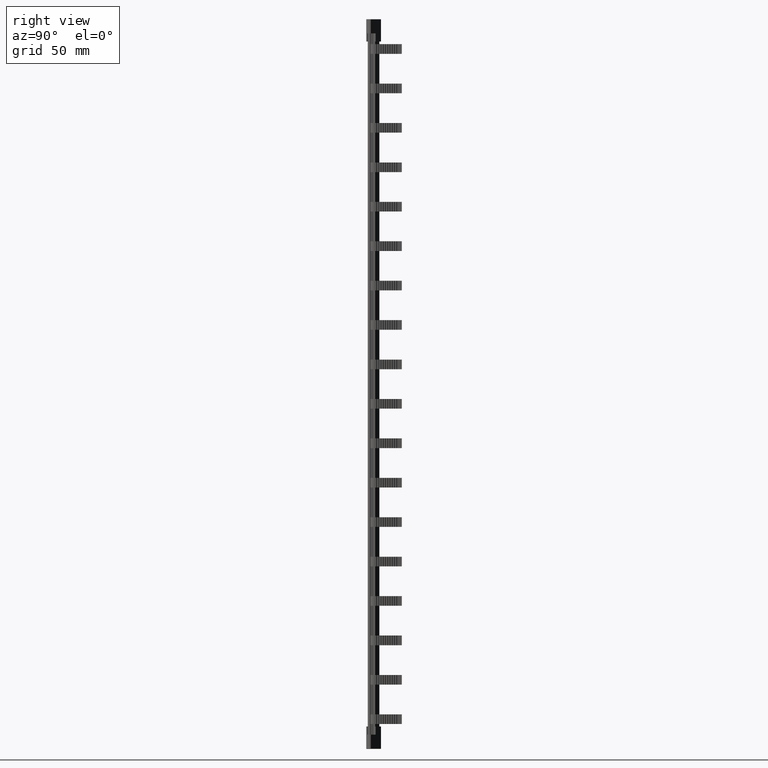
[diagram: clean part render]
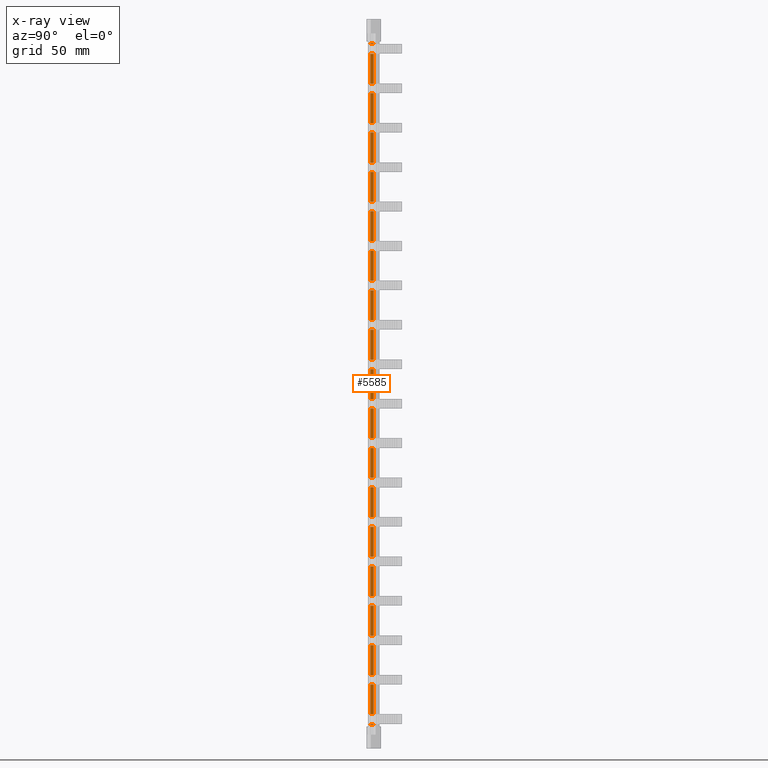
[diagram: x-ray — body ghosted, one internal face saturated and labeled with its STEP entity id]
A machine part, right view, then the same camera in x-ray: the body is ghosted and one INTERNAL B-rep face — a face not visible from any outside direction — is saturated and labeled: STEP entity #5585.
In plain terms, the highlighted planar face has unit normal (1, -0, 0).
Its self-contained STEP definition (entity closure, byte-faithful):
#1135 = PLANE ( 'NONE',  #29144 ) ;
#1137 = FACE_OUTER_BOUND ( 'NONE', #15935, .T. ) ;
#1138 = DIRECTION ( 'NONE',  ( 1.000000000000000000, -7.527729695361790300E-054, 1.654357377733165500E-024 ) ) ;
#1144 = DIRECTION ( 'NONE',  ( 1.654357377733165500E-024, 0.0000000000000000000, -1.000000000000000000 ) ) ;
#1179 = CARTESIAN_POINT ( 'NONE',  ( 10.37430495582721900, -198.1399000273587800, 209.0000000000000300 ) ) ;
#5353 = CARTESIAN_POINT ( 'NONE',  ( 10.37430495582721900, -198.1399000273587800, 134.0000000000000000 ) ) ;
#5354 = DIRECTION ( 'NONE',  ( -4.290194349704565900E-047, -1.000000000000000000, 2.593268936129210100E-023 ) ) ;
#5363 = CARTESIAN_POINT ( 'NONE',  ( 10.37430495582721900, -198.1399000273587800, 50.30000000000001100 ) ) ;
#5369 = DIRECTION ( 'NONE',  ( -4.290194349704565900E-047, -1.000000000000000000, 2.593268936129210100E-023 ) ) ;
#5585 = ADVANCED_FACE ( 'NONE', ( #1137 ), #1135, .T. ) ;
#6374 = VECTOR ( 'NONE', #19510, 1000.000000000000000 ) ;
#6408 = VECTOR ( 'NONE', #19505, 1000.000000000000000 ) ;
#6420 = VECTOR ( 'NONE', #19557, 1000.000000000000000 ) ;
#6422 = VECTOR ( 'NONE', #15770, 1000.000000000000000 ) ;
#6441 = VECTOR ( 'NONE', #15763, 1000.000000000000000 ) ;
#6444 = VECTOR ( 'NONE', #15780, 1000.000000000000000 ) ;
#6445 = VECTOR ( 'NONE', #19551, 1000.000000000000000 ) ;
#6446 = VECTOR ( 'NONE', #15775, 1000.000000000000000 ) ;
#6451 = VECTOR ( 'NONE', #14779, 1000.000000000000000 ) ;
#6457 = VECTOR ( 'NONE', #19520, 1000.000000000000000 ) ;
#6464 = VECTOR ( 'NONE', #19531, 1000.000000000000000 ) ;
#6467 = VECTOR ( 'NONE', #19582, 1000.000000000000000 ) ;
#6471 = VECTOR ( 'NONE', #14802, 1000.000000000000000 ) ;
#7313 = VECTOR ( 'NONE', #18851, 1000.000000000000000 ) ;
#7317 = VECTOR ( 'NONE', #18726, 1000.000000000000000 ) ;
#7336 = VECTOR ( 'NONE', #18704, 1000.000000000000000 ) ;
#7345 = VECTOR ( 'NONE', #18754, 1000.000000000000000 ) ;
#7346 = VECTOR ( 'NONE', #18805, 1000.000000000000000 ) ;
#7353 = VECTOR ( 'NONE', #18735, 1000.000000000000000 ) ;
#7355 = VECTOR ( 'NONE', #18751, 1000.000000000000000 ) ;
#7364 = VECTOR ( 'NONE', #18793, 1000.000000000000000 ) ;
#7367 = VECTOR ( 'NONE', #18841, 1000.000000000000000 ) ;
#7369 = VECTOR ( 'NONE', #18749, 1000.000000000000000 ) ;
#7374 = VECTOR ( 'NONE', #18764, 1000.000000000000000 ) ;
#7383 = VECTOR ( 'NONE', #18864, 1000.000000000000000 ) ;
#7385 = VECTOR ( 'NONE', #19057, 1000.000000000000000 ) ;
#7386 = VECTOR ( 'NONE', #19044, 1000.000000000000000 ) ;
#7394 = VECTOR ( 'NONE', #19019, 1000.000000000000000 ) ;
#7395 = VECTOR ( 'NONE', #19010, 1000.000000000000000 ) ;
#7402 = VECTOR ( 'NONE', #19018, 1000.000000000000000 ) ;
#7403 = VECTOR ( 'NONE', #18982, 1000.000000000000000 ) ;
#7404 = VECTOR ( 'NONE', #18987, 1000.000000000000000 ) ;
#7406 = VECTOR ( 'NONE', #18834, 1000.000000000000000 ) ;
#7408 = VECTOR ( 'NONE', #19052, 1000.000000000000000 ) ;
#7412 = VECTOR ( 'NONE', #19083, 1000.000000000000000 ) ;
#7425 = VECTOR ( 'NONE', #18849, 1000.000000000000000 ) ;
#7428 = VECTOR ( 'NONE', #18867, 1000.000000000000000 ) ;
#7432 = VECTOR ( 'NONE', #18947, 1000.000000000000000 ) ;
#7433 = VECTOR ( 'NONE', #19001, 1000.000000000000000 ) ;
#7434 = VECTOR ( 'NONE', #18977, 1000.000000000000000 ) ;
#7436 = VECTOR ( 'NONE', #18993, 1000.000000000000000 ) ;
#7438 = VECTOR ( 'NONE', #19040, 1000.000000000000000 ) ;
#7439 = VECTOR ( 'NONE', #19015, 1000.000000000000000 ) ;
#7440 = VECTOR ( 'NONE', #18869, 1000.000000000000000 ) ;
#7449 = VECTOR ( 'NONE', #19081, 1000.000000000000000 ) ;
#7640 = LINE ( 'NONE', #5353, #24638 ) ;
#7749 = CARTESIAN_POINT ( 'NONE',  ( 10.37430495582775900, 1.100000111734499500, 219.0000000000000000 ) ) ;
#7750 = CARTESIAN_POINT ( 'NONE',  ( 10.37430495582721900, 2.600000585347644700, 207.9000000000000100 ) ) ;
#7753 = DIRECTION ( 'NONE',  ( -0.0000000000000000000, 2.593268936129210100E-023, 1.000000000000000000 ) ) ;
#7754 = LINE ( 'NONE', #7749, #25068 ) ;
#7760 = LINE ( 'NONE', #7750, #25069 ) ;
#7762 = DIRECTION ( 'NONE',  ( -0.0000000000000000000, -0.0000000000000000000, -1.000000000000000000 ) ) ;
#7764 = LINE ( 'NONE', #7807, #25093 ) ;
#7807 = CARTESIAN_POINT ( 'NONE',  ( 10.37430495582775900, 1.100000111734499500, 219.0000000000000000 ) ) ;
#7810 = DIRECTION ( 'NONE',  ( -0.0000000000000000000, -0.0000000000000000000, -1.000000000000000000 ) ) ;
#8268 = CARTESIAN_POINT ( 'NONE',  ( 10.37430495582723300, 1.100000356056294300, 209.0000000000000000 ) ) ;
#8270 = CARTESIAN_POINT ( 'NONE',  ( 10.37430495582775900, 1.100000111734499500, -90.50000000000000000 ) ) ;
#8279 = CARTESIAN_POINT ( 'NONE',  ( 10.37430495582775900, 1.100000111734499500, 10.80000000000000400 ) ) ;
#8295 = CARTESIAN_POINT ( 'NONE',  ( 10.37430495582775900, 1.100000111734499500, 28.40000000000000900 ) ) ;
#8301 = CARTESIAN_POINT ( 'NONE',  ( 10.37430495582721900, 2.591846138716463500, -77.19999999999998900 ) ) ;
#8302 = CARTESIAN_POINT ( 'NONE',  ( 10.37430495582721900, 2.600000585347646900, -95.00000000000001400 ) ) ;
#8311 = CARTESIAN_POINT ( 'NONE',  ( 10.37430495582775900, 1.100000111734499500, -77.20000000000001700 ) ) ;
#8312 = CARTESIAN_POINT ( 'NONE',  ( 10.37430495582721900, 2.591846138716463500, -59.59999999999998700 ) ) ;
#8314 = CARTESIAN_POINT ( 'NONE',  ( 10.37430495582775900, 1.100000111734499500, -37.69999999999998200 ) ) ;
#8323 = CARTESIAN_POINT ( 'NONE',  ( 10.37430495582775900, 1.100000111734499500, -72.89999999999999100 ) ) ;
#8327 = CARTESIAN_POINT ( 'NONE',  ( 10.37430495582721900, 2.591846138716463500, -90.49999999999997200 ) ) ;
#8368 = CARTESIAN_POINT ( 'NONE',  ( 10.37430495582727200, 2.600000585347646900, 209.0000000000000000 ) ) ;
#8379 = CARTESIAN_POINT ( 'NONE',  ( 10.37430495582721900, 2.591846138716463500, -94.79999999999999700 ) ) ;
#8390 = CARTESIAN_POINT ( 'NONE',  ( 10.37430495582740000, 1.099999522800265500, -94.99999999999997200 ) ) ;
#8601 = LINE ( 'NONE', #8632, #24999 ) ;
#8632 = CARTESIAN_POINT ( 'NONE',  ( 10.37430495582721900, -198.1399000273587800, -94.79999999999999700 ) ) ;
#8633 = LINE ( 'NONE', #8657, #24976 ) ;
#8653 = DIRECTION ( 'NONE',  ( 1.654357377733165500E-024, 0.0000000000000000000, -1.000000000000000000 ) ) ;
#8654 = DIRECTION ( 'NONE',  ( -4.290194349704565900E-047, -1.000000000000000000, 2.593268936129210100E-023 ) ) ;
#8657 = CARTESIAN_POINT ( 'NONE',  ( 10.37430495582721900, 2.591846138716463500, 209.0000000000000300 ) ) ;
#8757 = DIRECTION ( 'NONE',  ( -0.0000000000000000000, -0.0000000000000000000, -1.000000000000000000 ) ) ;
#8760 = LINE ( 'NONE', #8794, #25051 ) ;
#8770 = DIRECTION ( 'NONE',  ( -0.0000000000000000000, -0.0000000000000000000, -1.000000000000000000 ) ) ;
#8772 = CARTESIAN_POINT ( 'NONE',  ( 10.37430495582775900, 1.100000111734499500, 219.0000000000000000 ) ) ;
#8773 = CARTESIAN_POINT ( 'NONE',  ( 10.37430495582775900, 1.100000111734499500, 219.0000000000000000 ) ) ;
#8774 = CARTESIAN_POINT ( 'NONE',  ( 10.37430495582775900, 1.100000111734499500, 219.0000000000000000 ) ) ;
#8778 = LINE ( 'NONE', #8772, #25038 ) ;
#8779 = DIRECTION ( 'NONE',  ( -0.0000000000000000000, -0.0000000000000000000, -1.000000000000000000 ) ) ;
#8780 = LINE ( 'NONE', #8773, #25000 ) ;
#8786 = LINE ( 'NONE', #8774, #25005 ) ;
#8794 = CARTESIAN_POINT ( 'NONE',  ( 10.37430495582775900, 1.100000111734499500, 219.0000000000000000 ) ) ;
#8799 = DIRECTION ( 'NONE',  ( -0.0000000000000000000, -0.0000000000000000000, -1.000000000000000000 ) ) ;
#8809 = LINE ( 'NONE', #8837, #25042 ) ;
#8818 = CARTESIAN_POINT ( 'NONE',  ( 10.37430495582721900, 1.099998344931796300, 209.0000000000000300 ) ) ;
#8825 = LINE ( 'NONE', #8818, #25040 ) ;
#8826 = DIRECTION ( 'NONE',  ( 1.654357377733165500E-024, 0.0000000000000000000, -1.000000000000000000 ) ) ;
#8828 = DIRECTION ( 'NONE',  ( -0.0000000000000000000, -0.0000000000000000000, -1.000000000000000000 ) ) ;
#8837 = CARTESIAN_POINT ( 'NONE',  ( 10.37430495582775900, 1.100000111734499500, 219.0000000000000000 ) ) ;
#9745 = CARTESIAN_POINT ( 'NONE',  ( 10.37430495582721900, 1.099999853109018300, 208.7000000000000700 ) ) ;
#9769 = CARTESIAN_POINT ( 'NONE',  ( 10.37430495582721900, 2.591846138716463500, 186.8000000000000100 ) ) ;
#9782 = CARTESIAN_POINT ( 'NONE',  ( 10.37430495582775900, 1.100000111734499500, 186.8000000000000100 ) ) ;
#9809 = CARTESIAN_POINT ( 'NONE',  ( 10.37430495582721900, 2.591846138716463500, 46.00000000000001400 ) ) ;
#9815 = CARTESIAN_POINT ( 'NONE',  ( 10.37430495582721900, 2.591846138716463500, 98.80000000000002600 ) ) ;
#9821 = CARTESIAN_POINT ( 'NONE',  ( 10.37430495582721900, 2.591846138716463500, 81.20000000000004500 ) ) ;
#9824 = CARTESIAN_POINT ( 'NONE',  ( 10.37430495582775900, 1.100000111734499500, 155.9000000000000900 ) ) ;
#9834 = CARTESIAN_POINT ( 'NONE',  ( 10.37430495582721900, 2.591846138716463500, 208.7000000000000700 ) ) ;
#9836 = CARTESIAN_POINT ( 'NONE',  ( 10.37430495582721900, 2.591846138716463500, 134.0000000000000000 ) ) ;
#9840 = CARTESIAN_POINT ( 'NONE',  ( 10.37430495582775900, 1.100000111734499500, 85.50000000000001400 ) ) ;
#9842 = CARTESIAN_POINT ( 'NONE',  ( 10.37430495582721900, 2.591846138716463500, 50.30000000000001100 ) ) ;
#9845 = CARTESIAN_POINT ( 'NONE',  ( 10.37430495582775900, 1.100000111734499500, 46.00000000000001400 ) ) ;
#9853 = CARTESIAN_POINT ( 'NONE',  ( 10.37430495582721900, 2.591846138716463500, 138.3000000000000400 ) ) ;
#9864 = CARTESIAN_POINT ( 'NONE',  ( 10.37430495582775900, 1.100000111734499500, 204.4000000000000300 ) ) ;
#9865 = CARTESIAN_POINT ( 'NONE',  ( 10.37430495582721900, 2.591846138716463500, 63.60000000000001600 ) ) ;
#9866 = CARTESIAN_POINT ( 'NONE',  ( 10.37430495582775900, 1.100000111734499500, 173.5000000000000300 ) ) ;
#9867 = CARTESIAN_POINT ( 'NONE',  ( 10.37430495582721900, 2.591846138716463500, 204.4000000000000300 ) ) ;
#9868 = CARTESIAN_POINT ( 'NONE',  ( 10.37430495582775900, 1.100000111734499500, 103.1000000000000200 ) ) ;
#9874 = CARTESIAN_POINT ( 'NONE',  ( 10.37430495582721900, 1.099998344931796300, -94.79999999999999700 ) ) ;
#9876 = CARTESIAN_POINT ( 'NONE',  ( 10.37430495582775900, 1.100000111734499500, -20.09999999999998000 ) ) ;
#9877 = CARTESIAN_POINT ( 'NONE',  ( 10.37430495582721900, 2.591846138716463500, 67.90000000000004800 ) ) ;
#9878 = CARTESIAN_POINT ( 'NONE',  ( 10.37430495582775900, 1.100000111734499500, 32.70000000000001000 ) ) ;
#9879 = CARTESIAN_POINT ( 'NONE',  ( 10.37430495582721900, 2.591846138716463500, -24.39999999999997700 ) ) ;
#9880 = CARTESIAN_POINT ( 'NONE',  ( 10.37430495582775900, 1.100000111734499500, 138.3000000000000400 ) ) ;
#9887 = CARTESIAN_POINT ( 'NONE',  ( 10.37430495582775900, 1.100000111734499500, 63.60000000000001600 ) ) ;
#9889 = CARTESIAN_POINT ( 'NONE',  ( 10.37430495582721900, 2.591846138716463500, 155.9000000000000900 ) ) ;
#9891 = CARTESIAN_POINT ( 'NONE',  ( 10.37430495582721900, 2.591846138716463500, 116.4000000000000200 ) ) ;
#9892 = CARTESIAN_POINT ( 'NONE',  ( 10.37430495582721900, 2.591846138716463500, 85.50000000000001400 ) ) ;
#9895 = CARTESIAN_POINT ( 'NONE',  ( 10.37430495582775900, 1.100000111734499500, -2.499999999999974200 ) ) ;
#9897 = CARTESIAN_POINT ( 'NONE',  ( 10.37430495582721900, 2.591846138716463500, 151.6000000000000200 ) ) ;
#9898 = CARTESIAN_POINT ( 'NONE',  ( 10.37430495582775900, 1.100000111734499500, 116.4000000000000200 ) ) ;
#9899 = CARTESIAN_POINT ( 'NONE',  ( 10.37430495582775900, 1.100000111734499500, 67.90000000000004800 ) ) ;
#9902 = CARTESIAN_POINT ( 'NONE',  ( 10.37430495582721900, 2.591846138716463500, 15.10000000000000100 ) ) ;
#9903 = CARTESIAN_POINT ( 'NONE',  ( 10.37430495582721900, 2.591846138716463500, -41.99999999999997900 ) ) ;
#9904 = CARTESIAN_POINT ( 'NONE',  ( 10.37430495582775900, 1.100000111734499500, 151.6000000000000200 ) ) ;
#9906 = CARTESIAN_POINT ( 'NONE',  ( 10.37430495582721900, 2.591846138716463500, -2.499999999999974200 ) ) ;
#9908 = CARTESIAN_POINT ( 'NONE',  ( 10.37430495582721900, 2.591846138716463500, -6.799999999999972300 ) ) ;
#9913 = CARTESIAN_POINT ( 'NONE',  ( 10.37430495582775900, 1.100000111734499500, 81.20000000000004500 ) ) ;
#9914 = CARTESIAN_POINT ( 'NONE',  ( 10.37430495582721900, 2.591846138716463500, 191.1000000000000200 ) ) ;
#9918 = CARTESIAN_POINT ( 'NONE',  ( 10.37430495582721900, 2.591846138716463500, 169.2000000000000700 ) ) ;
#9921 = CARTESIAN_POINT ( 'NONE',  ( 10.37430495582775900, 1.100000111734499500, 169.2000000000000700 ) ) ;
#9926 = CARTESIAN_POINT ( 'NONE',  ( 10.37430495582775900, 1.100000111734499500, 120.7000000000000200 ) ) ;
#9928 = CARTESIAN_POINT ( 'NONE',  ( 10.37430495582721900, 2.591846138716463500, 120.7000000000000200 ) ) ;
#9930 = CARTESIAN_POINT ( 'NONE',  ( 10.37430495582775900, 1.100000111734499500, 98.80000000000002600 ) ) ;
#9931 = CARTESIAN_POINT ( 'NONE',  ( 10.37430495582721900, 2.591846138716463500, 103.1000000000000200 ) ) ;
#9932 = CARTESIAN_POINT ( 'NONE',  ( 10.37430495582721900, 2.591846138716463500, 28.40000000000003800 ) ) ;
#9937 = CARTESIAN_POINT ( 'NONE',  ( 10.37430495582775900, 1.100000111734499500, 134.0000000000000000 ) ) ;
#9938 = CARTESIAN_POINT ( 'NONE',  ( 10.37430495582721900, 2.591846138716463500, -55.30000000000001800 ) ) ;
#9942 = CARTESIAN_POINT ( 'NONE',  ( 10.37430495582775900, 1.100000111734499500, -59.59999999999995900 ) ) ;
#9950 = CARTESIAN_POINT ( 'NONE',  ( 10.37430495582775900, 1.100000111734499500, -24.39999999999997700 ) ) ;
#9952 = CARTESIAN_POINT ( 'NONE',  ( 10.37430495582721900, 2.591846138716463500, 10.80000000000000400 ) ) ;
#9953 = CARTESIAN_POINT ( 'NONE',  ( 10.37430495582775900, 1.100000111734499500, -41.99999999999995700 ) ) ;
#9955 = CARTESIAN_POINT ( 'NONE',  ( 10.37430495582721900, 2.591846138716463500, 173.5000000000000300 ) ) ;
#9960 = CARTESIAN_POINT ( 'NONE',  ( 10.37430495582721900, 2.591846138716463500, -72.90000000000002000 ) ) ;
#9961 = CARTESIAN_POINT ( 'NONE',  ( 10.37430495582775900, 1.100000111734499500, -6.799999999999972300 ) ) ;
#9967 = CARTESIAN_POINT ( 'NONE',  ( 10.37430495582721900, 2.591846138716463500, -37.69999999999998200 ) ) ;
#9970 = CARTESIAN_POINT ( 'NONE',  ( 10.37430495582775900, 1.100000111734499500, 15.10000000000000100 ) ) ;
#9973 = CARTESIAN_POINT ( 'NONE',  ( 10.37430495582775900, 1.100000111734499500, 191.1000000000000200 ) ) ;
#9975 = CARTESIAN_POINT ( 'NONE',  ( 10.37430495582721900, 2.591846138716463500, 32.70000000000001000 ) ) ;
#9977 = CARTESIAN_POINT ( 'NONE',  ( 10.37430495582775900, 1.100000111734499500, -55.29999999999999000 ) ) ;
#9978 = CARTESIAN_POINT ( 'NONE',  ( 10.37430495582721900, 2.591846138716463500, -20.09999999999998000 ) ) ;
#9985 = CARTESIAN_POINT ( 'NONE',  ( 10.37430495582775900, 1.100000111734499500, 50.30000000000001100 ) ) ;
#11294 = ORIENTED_EDGE ( 'NONE', *, *, #22754, .T. ) ;
#11296 = ORIENTED_EDGE ( 'NONE', *, *, #22786, .T. ) ;
#11297 = ORIENTED_EDGE ( 'NONE', *, *, #22691, .F. ) ;
#11310 = ORIENTED_EDGE ( 'NONE', *, *, #22800, .T. ) ;
#11319 = ORIENTED_EDGE ( 'NONE', *, *, #21920, .T. ) ;
#11320 = ORIENTED_EDGE ( 'NONE', *, *, #27519, .T. ) ;
#11321 = ORIENTED_EDGE ( 'NONE', *, *, #22788, .T. ) ;
#11329 = ORIENTED_EDGE ( 'NONE', *, *, #22785, .T. ) ;
#11333 = ORIENTED_EDGE ( 'NONE', *, *, #22769, .T. ) ;
#11335 = ORIENTED_EDGE ( 'NONE', *, *, #21835, .T. ) ;
#11336 = ORIENTED_EDGE ( 'NONE', *, *, #22706, .T. ) ;
#11337 = ORIENTED_EDGE ( 'NONE', *, *, #22807, .F. ) ;
#11349 = ORIENTED_EDGE ( 'NONE', *, *, #22782, .T. ) ;
#11351 = ORIENTED_EDGE ( 'NONE', *, *, #22701, .F. ) ;
#11352 = ORIENTED_EDGE ( 'NONE', *, *, #22672, .F. ) ;
#11353 = ORIENTED_EDGE ( 'NONE', *, *, #27486, .T. ) ;
#11354 = ORIENTED_EDGE ( 'NONE', *, *, #21840, .T. ) ;
#12602 = ORIENTED_EDGE ( 'NONE', *, *, #22748, .F. ) ;
#12604 = ORIENTED_EDGE ( 'NONE', *, *, #22716, .T. ) ;
#12605 = ORIENTED_EDGE ( 'NONE', *, *, #22787, .T. ) ;
#12606 = ORIENTED_EDGE ( 'NONE', *, *, #27485, .T. ) ;
#12607 = ORIENTED_EDGE ( 'NONE', *, *, #27473, .T. ) ;
#12609 = ORIENTED_EDGE ( 'NONE', *, *, #21886, .T. ) ;
#12611 = ORIENTED_EDGE ( 'NONE', *, *, #22790, .T. ) ;
#12613 = ORIENTED_EDGE ( 'NONE', *, *, #22752, .F. ) ;
#12614 = ORIENTED_EDGE ( 'NONE', *, *, #22798, .T. ) ;
#12615 = ORIENTED_EDGE ( 'NONE', *, *, #22688, .T. ) ;
#12617 = ORIENTED_EDGE ( 'NONE', *, *, #27492, .T. ) ;
#12618 = ORIENTED_EDGE ( 'NONE', *, *, #22804, .T. ) ;
#12619 = ORIENTED_EDGE ( 'NONE', *, *, #21897, .T. ) ;
#12621 = ORIENTED_EDGE ( 'NONE', *, *, #22765, .T. ) ;
#12622 = ORIENTED_EDGE ( 'NONE', *, *, #22758, .T. ) ;
#12625 = ORIENTED_EDGE ( 'NONE', *, *, #22650, .F. ) ;
#12626 = ORIENTED_EDGE ( 'NONE', *, *, #22746, .T. ) ;
#12627 = ORIENTED_EDGE ( 'NONE', *, *, #22638, .T. ) ;
#12632 = ORIENTED_EDGE ( 'NONE', *, *, #27507, .T. ) ;
#12633 = ORIENTED_EDGE ( 'NONE', *, *, #21885, .T. ) ;
#12634 = ORIENTED_EDGE ( 'NONE', *, *, #22589, .F. ) ;
#14779 = DIRECTION ( 'NONE',  ( -0.0000000000000000000, -0.0000000000000000000, -1.000000000000000000 ) ) ;
#14782 = LINE ( 'NONE', #14810, #6471 ) ;
#14802 = DIRECTION ( 'NONE',  ( -0.0000000000000000000, -0.0000000000000000000, -1.000000000000000000 ) ) ;
#14810 = CARTESIAN_POINT ( 'NONE',  ( 10.37430495582775900, 1.100000111734499500, 219.0000000000000000 ) ) ;
#15757 = LINE ( 'NONE', #15785, #6422 ) ;
#15759 = LINE ( 'NONE', #15788, #6441 ) ;
#15763 = DIRECTION ( 'NONE',  ( -0.0000000000000000000, -0.0000000000000000000, -1.000000000000000000 ) ) ;
#15766 = CARTESIAN_POINT ( 'NONE',  ( 10.37430495582775900, 1.100000111734499500, 219.0000000000000000 ) ) ;
#15770 = DIRECTION ( 'NONE',  ( 1.654357377733165500E-024, 0.0000000000000000000, -1.000000000000000000 ) ) ;
#15773 = CARTESIAN_POINT ( 'NONE',  ( 10.37430495582732500, -198.1399000273587500, 209.0000000000000300 ) ) ;
#15775 = DIRECTION ( 'NONE',  ( -0.0000000000000000000, -0.0000000000000000000, -1.000000000000000000 ) ) ;
#15777 = LINE ( 'NONE', #15773, #6444 ) ;
#15780 = DIRECTION ( 'NONE',  ( -0.0000000000000000000, 1.000000000000000000, -2.593268936129210100E-023 ) ) ;
#15782 = LINE ( 'NONE', #15766, #6446 ) ;
#15785 = CARTESIAN_POINT ( 'NONE',  ( 10.37430495582721900, 1.099999853109018300, 209.0000000000000300 ) ) ;
#15788 = CARTESIAN_POINT ( 'NONE',  ( 10.37430495582775900, 1.100000111734499500, 219.0000000000000000 ) ) ;
#15801 = LINE ( 'NONE', #15810, #6451 ) ;
#15810 = CARTESIAN_POINT ( 'NONE',  ( 10.37430495582775900, 1.100000111734499500, 219.0000000000000000 ) ) ;
#15935 = EDGE_LOOP ( 'NONE', ( #27163, #27175, #27154, #27191, #27176, #27184, #12605, #27132, #27186, #12634, #27155, #12627, #27181, #27166, #27189, #27150, #27149, #27151, #27144, #27137, #12633, #27173, #27139, #27180, #27164, #27179, #27156, #27133, #12606, #27161, #27183, #12626, #27178, #27159, #12614, #27136, #27195, #12625, #27190, #12604, #12609, #27162, #27134, #27192, #12617, #27146, #27188, #27172, #27152, #11351, #12611, #11336, #12607, #11352, #12618, #11349, #11320, #11337, #12621, #11333, #11353, #11297, #11329, #11294, #12619, #12602, #12622, #11310, #12632, #12613, #11296, #12615, #11319, #11321, #11354, #11335 ) ) ;
#17914 = VERTEX_POINT ( 'NONE', #9782 ) ;
#17944 = VERTEX_POINT ( 'NONE', #9769 ) ;
#17946 = VERTEX_POINT ( 'NONE', #9745 ) ;
#17967 = VERTEX_POINT ( 'NONE', #9834 ) ;
#17973 = VERTEX_POINT ( 'NONE', #9809 ) ;
#17976 = VERTEX_POINT ( 'NONE', #9815 ) ;
#17977 = VERTEX_POINT ( 'NONE', #9845 ) ;
#17981 = VERTEX_POINT ( 'NONE', #9864 ) ;
#17982 = VERTEX_POINT ( 'NONE', #9865 ) ;
#17989 = VERTEX_POINT ( 'NONE', #9866 ) ;
#17990 = VERTEX_POINT ( 'NONE', #9853 ) ;
#17992 = VERTEX_POINT ( 'NONE', #9867 ) ;
#17993 = VERTEX_POINT ( 'NONE', #9821 ) ;
#17998 = VERTEX_POINT ( 'NONE', #9840 ) ;
#18001 = VERTEX_POINT ( 'NONE', #9824 ) ;
#18002 = VERTEX_POINT ( 'NONE', #9868 ) ;
#18003 = VERTEX_POINT ( 'NONE', #9836 ) ;
#18004 = VERTEX_POINT ( 'NONE', #9842 ) ;
#18013 = VERTEX_POINT ( 'NONE', #9913 ) ;
#18016 = VERTEX_POINT ( 'NONE', #9926 ) ;
#18018 = VERTEX_POINT ( 'NONE', #9898 ) ;
#18022 = VERTEX_POINT ( 'NONE', #9897 ) ;
#18023 = VERTEX_POINT ( 'NONE', #9914 ) ;
#18031 = VERTEX_POINT ( 'NONE', #9892 ) ;
#18032 = VERTEX_POINT ( 'NONE', #9889 ) ;
#18034 = VERTEX_POINT ( 'NONE', #9921 ) ;
#18035 = VERTEX_POINT ( 'NONE', #9899 ) ;
#18039 = VERTEX_POINT ( 'NONE', #9876 ) ;
#18040 = VERTEX_POINT ( 'NONE', #9877 ) ;
#18042 = VERTEX_POINT ( 'NONE', #9902 ) ;
#18050 = VERTEX_POINT ( 'NONE', #9879 ) ;
#18052 = VERTEX_POINT ( 'NONE', #9908 ) ;
#18055 = VERTEX_POINT ( 'NONE', #9895 ) ;
#18057 = VERTEX_POINT ( 'NONE', #9903 ) ;
#18060 = VERTEX_POINT ( 'NONE', #9918 ) ;
#18062 = VERTEX_POINT ( 'NONE', #9904 ) ;
#18063 = VERTEX_POINT ( 'NONE', #9891 ) ;
#18065 = VERTEX_POINT ( 'NONE', #9874 ) ;
#18067 = VERTEX_POINT ( 'NONE', #9928 ) ;
#18068 = VERTEX_POINT ( 'NONE', #9906 ) ;
#18069 = VERTEX_POINT ( 'NONE', #9878 ) ;
#18070 = VERTEX_POINT ( 'NONE', #9880 ) ;
#18072 = VERTEX_POINT ( 'NONE', #9931 ) ;
#18073 = VERTEX_POINT ( 'NONE', #9887 ) ;
#18075 = VERTEX_POINT ( 'NONE', #9930 ) ;
#18076 = VERTEX_POINT ( 'NONE', #9932 ) ;
#18078 = VERTEX_POINT ( 'NONE', #9952 ) ;
#18080 = VERTEX_POINT ( 'NONE', #9973 ) ;
#18082 = VERTEX_POINT ( 'NONE', #9967 ) ;
#18084 = VERTEX_POINT ( 'NONE', #9937 ) ;
#18086 = VERTEX_POINT ( 'NONE', #9953 ) ;
#18089 = VERTEX_POINT ( 'NONE', #9955 ) ;
#18094 = VERTEX_POINT ( 'NONE', #9942 ) ;
#18095 = VERTEX_POINT ( 'NONE', #9970 ) ;
#18100 = VERTEX_POINT ( 'NONE', #9950 ) ;
#18108 = VERTEX_POINT ( 'NONE', #9975 ) ;
#18113 = VERTEX_POINT ( 'NONE', #9960 ) ;
#18114 = VERTEX_POINT ( 'NONE', #9961 ) ;
#18122 = VERTEX_POINT ( 'NONE', #9977 ) ;
#18123 = VERTEX_POINT ( 'NONE', #9978 ) ;
#18125 = VERTEX_POINT ( 'NONE', #9985 ) ;
#18129 = VERTEX_POINT ( 'NONE', #9938 ) ;
#18133 = VERTEX_POINT ( 'NONE', #8295 ) ;
#18137 = VERTEX_POINT ( 'NONE', #8312 ) ;
#18138 = VERTEX_POINT ( 'NONE', #8311 ) ;
#18142 = VERTEX_POINT ( 'NONE', #8301 ) ;
#18143 = VERTEX_POINT ( 'NONE', #8279 ) ;
#18151 = VERTEX_POINT ( 'NONE', #8327 ) ;
#18153 = VERTEX_POINT ( 'NONE', #8314 ) ;
#18162 = VERTEX_POINT ( 'NONE', #8323 ) ;
#18186 = VERTEX_POINT ( 'NONE', #8302 ) ;
#18189 = VERTEX_POINT ( 'NONE', #8268 ) ;
#18190 = VERTEX_POINT ( 'NONE', #8270 ) ;
#18196 = VERTEX_POINT ( 'NONE', #8390 ) ;
#18201 = VERTEX_POINT ( 'NONE', #8379 ) ;
#18204 = VERTEX_POINT ( 'NONE', #8368 ) ;
#18595 = DIRECTION ( 'NONE',  ( -4.290194349704565900E-047, -1.000000000000000000, 2.593268936129210100E-023 ) ) ;
#18602 = LINE ( 'NONE', #18605, #24186 ) ;
#18605 = CARTESIAN_POINT ( 'NONE',  ( 10.37430495582721900, -198.1399000273587800, -77.19999999999998900 ) ) ;
#18608 = CARTESIAN_POINT ( 'NONE',  ( 10.37430495582721900, -198.1399000273587800, -2.499999999999974200 ) ) ;
#18621 = LINE ( 'NONE', #18608, #24656 ) ;
#18631 = LINE ( 'NONE', #18637, #24792 ) ;
#18634 = DIRECTION ( 'NONE',  ( -4.290194349704565900E-047, -1.000000000000000000, 2.593268936129210100E-023 ) ) ;
#18637 = CARTESIAN_POINT ( 'NONE',  ( 10.37430495582721900, -198.1399000273587800, 151.6000000000000200 ) ) ;
#18653 = LINE ( 'NONE', #18662, #24482 ) ;
#18655 = LINE ( 'NONE', #18671, #24265 ) ;
#18657 = DIRECTION ( 'NONE',  ( 1.654357377733165500E-024, 0.0000000000000000000, -1.000000000000000000 ) ) ;
#18662 = CARTESIAN_POINT ( 'NONE',  ( 10.37430495582721900, -198.1399000273587800, -37.69999999999998200 ) ) ;
#18663 = DIRECTION ( 'NONE',  ( -4.290194349704565900E-047, -1.000000000000000000, 2.593268936129210100E-023 ) ) ;
#18669 = LINE ( 'NONE', #18709, #24652 ) ;
#18671 = CARTESIAN_POINT ( 'NONE',  ( 10.37430495582721900, 2.591846138716463500, 209.0000000000000300 ) ) ;
#18673 = DIRECTION ( 'NONE',  ( -4.290194349704565900E-047, -1.000000000000000000, 2.593268936129210100E-023 ) ) ;
#18692 = CARTESIAN_POINT ( 'NONE',  ( 10.37430495582721900, -198.1399000273587800, 10.80000000000000400 ) ) ;
#18701 = DIRECTION ( 'NONE',  ( -4.290194349704565900E-047, -1.000000000000000000, 2.593268936129210100E-023 ) ) ;
#18704 = DIRECTION ( 'NONE',  ( -4.290194349704565900E-047, -1.000000000000000000, 2.593268936129210100E-023 ) ) ;
#18705 = CARTESIAN_POINT ( 'NONE',  ( 10.37430495582721900, -198.1399000273587800, 63.60000000000001600 ) ) ;
#18707 = LINE ( 'NONE', #18732, #7353 ) ;
#18709 = CARTESIAN_POINT ( 'NONE',  ( 10.37430495582721900, -198.1399000273587800, 15.10000000000000100 ) ) ;
#18718 = LINE ( 'NONE', #18705, #7345 ) ;
#18721 = LINE ( 'NONE', #18692, #7336 ) ;
#18726 = DIRECTION ( 'NONE',  ( 1.654357377733165500E-024, 0.0000000000000000000, -1.000000000000000000 ) ) ;
#18727 = CARTESIAN_POINT ( 'NONE',  ( 10.37430495582721900, -198.1399000273587800, 81.20000000000004500 ) ) ;
#18730 = CARTESIAN_POINT ( 'NONE',  ( 10.37430495582721900, -198.1399000273587800, 28.40000000000003800 ) ) ;
#18732 = CARTESIAN_POINT ( 'NONE',  ( 10.37430495582721900, 2.591846138716463500, 209.0000000000000300 ) ) ;
#18735 = DIRECTION ( 'NONE',  ( 1.654357377733165500E-024, 0.0000000000000000000, -1.000000000000000000 ) ) ;
#18736 = CARTESIAN_POINT ( 'NONE',  ( 10.37430495582721900, -198.1399000273587800, 46.00000000000001400 ) ) ;
#18741 = LINE ( 'NONE', #18736, #7355 ) ;
#18742 = LINE ( 'NONE', #18759, #7317 ) ;
#18743 = LINE ( 'NONE', #18727, #7369 ) ;
#18748 = CARTESIAN_POINT ( 'NONE',  ( 10.37430495582721900, -198.1399000273587800, 32.70000000000001000 ) ) ;
#18749 = DIRECTION ( 'NONE',  ( -4.290194349704565900E-047, -1.000000000000000000, 2.593268936129210100E-023 ) ) ;
#18751 = DIRECTION ( 'NONE',  ( -4.290194349704565900E-047, -1.000000000000000000, 2.593268936129210100E-023 ) ) ;
#18754 = DIRECTION ( 'NONE',  ( -4.290194349704565900E-047, -1.000000000000000000, 2.593268936129210100E-023 ) ) ;
#18759 = CARTESIAN_POINT ( 'NONE',  ( 10.37430495582721900, 2.591846138716463500, 209.0000000000000300 ) ) ;
#18763 = LINE ( 'NONE', #18748, #7374 ) ;
#18764 = DIRECTION ( 'NONE',  ( -4.290194349704565900E-047, -1.000000000000000000, 2.593268936129210100E-023 ) ) ;
#18766 = LINE ( 'NONE', #18730, #7346 ) ;
#18769 = LINE ( 'NONE', #18835, #7367 ) ;
#18784 = CARTESIAN_POINT ( 'NONE',  ( 10.37430495582721900, -198.1399000273587800, 85.50000000000001400 ) ) ;
#18792 = LINE ( 'NONE', #18784, #7364 ) ;
#18793 = DIRECTION ( 'NONE',  ( -4.290194349704565900E-047, -1.000000000000000000, 2.593268936129210100E-023 ) ) ;
#18805 = DIRECTION ( 'NONE',  ( -4.290194349704565900E-047, -1.000000000000000000, 2.593268936129210100E-023 ) ) ;
#18815 = LINE ( 'NONE', #18905, #7440 ) ;
#18822 = CARTESIAN_POINT ( 'NONE',  ( 10.37430495582721900, -198.1399000273587800, -72.90000000000002000 ) ) ;
#18823 = CARTESIAN_POINT ( 'NONE',  ( 10.37430495582721900, -198.1399000273587800, 98.80000000000002600 ) ) ;
#18834 = DIRECTION ( 'NONE',  ( -4.290194349704565900E-047, -1.000000000000000000, 2.593268936129210100E-023 ) ) ;
#18835 = CARTESIAN_POINT ( 'NONE',  ( 10.37430495582721900, -198.1399000273587800, -55.30000000000001800 ) ) ;
#18839 = CARTESIAN_POINT ( 'NONE',  ( 10.37430495582721900, -198.1399000273587800, -41.99999999999997900 ) ) ;
#18841 = DIRECTION ( 'NONE',  ( -4.290194349704565900E-047, -1.000000000000000000, 2.593268936129210100E-023 ) ) ;
#18845 = LINE ( 'NONE', #18839, #7406 ) ;
#18848 = LINE ( 'NONE', #18823, #7313 ) ;
#18849 = DIRECTION ( 'NONE',  ( -4.290194349704565900E-047, -1.000000000000000000, 2.593268936129210100E-023 ) ) ;
#18851 = DIRECTION ( 'NONE',  ( -4.290194349704565900E-047, -1.000000000000000000, 2.593268936129210100E-023 ) ) ;
#18854 = LINE ( 'NONE', #18822, #7425 ) ;
#18864 = DIRECTION ( 'NONE',  ( 1.654357377733165500E-024, 0.0000000000000000000, -1.000000000000000000 ) ) ;
#18867 = DIRECTION ( 'NONE',  ( -4.290194349704565900E-047, -1.000000000000000000, 2.593268936129210100E-023 ) ) ;
#18869 = DIRECTION ( 'NONE',  ( 1.654357377733165500E-024, 0.0000000000000000000, -1.000000000000000000 ) ) ;
#18876 = CARTESIAN_POINT ( 'NONE',  ( 10.37430495582721900, 2.591846138716463500, 209.0000000000000300 ) ) ;
#18882 = LINE ( 'NONE', #18906, #7428 ) ;
#18905 = CARTESIAN_POINT ( 'NONE',  ( 10.37430495582721900, 2.591846138716463500, 209.0000000000000300 ) ) ;
#18906 = CARTESIAN_POINT ( 'NONE',  ( 10.37430495582721900, -198.1399000273587800, -24.39999999999997700 ) ) ;
#18910 = LINE ( 'NONE', #18876, #7383 ) ;
#18912 = CARTESIAN_POINT ( 'NONE',  ( 10.37430495582721900, -198.1399000273587800, -6.799999999999972300 ) ) ;
#18914 = CARTESIAN_POINT ( 'NONE',  ( 10.37430495582721900, 2.591846138716463500, 209.0000000000000300 ) ) ;
#18939 = LINE ( 'NONE', #18914, #7432 ) ;
#18947 = DIRECTION ( 'NONE',  ( 1.654357377733165500E-024, 0.0000000000000000000, -1.000000000000000000 ) ) ;
#18966 = LINE ( 'NONE', #18912, #7403 ) ;
#18967 = LINE ( 'NONE', #18971, #7395 ) ;
#18970 = CARTESIAN_POINT ( 'NONE',  ( 10.37430495582721900, 2.591846138716463500, 209.0000000000000300 ) ) ;
#18971 = CARTESIAN_POINT ( 'NONE',  ( 10.37430495582721900, 2.591846138716463500, 209.0000000000000300 ) ) ;
#18972 = CARTESIAN_POINT ( 'NONE',  ( 10.37430495582721900, 3.291625835368828600, -90.50000000000000000 ) ) ;
#18977 = DIRECTION ( 'NONE',  ( 4.290194349704565900E-047, 1.000000000000000000, -2.593268936129210100E-023 ) ) ;
#18981 = LINE ( 'NONE', #19045, #7394 ) ;
#18982 = DIRECTION ( 'NONE',  ( -4.290194349704565900E-047, -1.000000000000000000, 2.593268936129210100E-023 ) ) ;
#18984 = LINE ( 'NONE', #19003, #7436 ) ;
#18987 = DIRECTION ( 'NONE',  ( 1.654357377733165500E-024, 0.0000000000000000000, -1.000000000000000000 ) ) ;
#18993 = DIRECTION ( 'NONE',  ( 1.654357377733165500E-024, 0.0000000000000000000, -1.000000000000000000 ) ) ;
#18995 = LINE ( 'NONE', #18997, #7404 ) ;
#18996 = CARTESIAN_POINT ( 'NONE',  ( 10.37430495582721900, 2.591846138716463500, 209.0000000000000300 ) ) ;
#18997 = CARTESIAN_POINT ( 'NONE',  ( 10.37430495582721900, 2.591846138716463500, 209.0000000000000300 ) ) ;
#18999 = LINE ( 'NONE', #18970, #7438 ) ;
#19001 = DIRECTION ( 'NONE',  ( 1.654357377733165500E-024, 0.0000000000000000000, -1.000000000000000000 ) ) ;
#19002 = LINE ( 'NONE', #18996, #7433 ) ;
#19003 = CARTESIAN_POINT ( 'NONE',  ( 10.37430495582721900, 2.591846138716463500, 209.0000000000000300 ) ) ;
#19006 = LINE ( 'NONE', #18972, #7434 ) ;
#19010 = DIRECTION ( 'NONE',  ( 1.654357377733165500E-024, 0.0000000000000000000, -1.000000000000000000 ) ) ;
#19015 = DIRECTION ( 'NONE',  ( 1.654357377733165500E-024, 0.0000000000000000000, -1.000000000000000000 ) ) ;
#19017 = CARTESIAN_POINT ( 'NONE',  ( 10.37430495582721900, 2.591846138716463500, 209.0000000000000300 ) ) ;
#19018 = DIRECTION ( 'NONE',  ( 1.654357377733165500E-024, 0.0000000000000000000, -1.000000000000000000 ) ) ;
#19019 = DIRECTION ( 'NONE',  ( -4.290194349704565900E-047, -1.000000000000000000, 2.593268936129210100E-023 ) ) ;
#19023 = CARTESIAN_POINT ( 'NONE',  ( 10.37430495582721900, 2.591846138716463500, 209.0000000000000300 ) ) ;
#19024 = CARTESIAN_POINT ( 'NONE',  ( 10.37430495582721900, 2.591846138716463500, 209.0000000000000300 ) ) ;
#19025 = CARTESIAN_POINT ( 'NONE',  ( 10.37430495582721900, 2.591846138716463500, 209.0000000000000300 ) ) ;
#19032 = LINE ( 'NONE', #19046, #7412 ) ;
#19035 = LINE ( 'NONE', #19039, #7439 ) ;
#19038 = LINE ( 'NONE', #19024, #7386 ) ;
#19039 = CARTESIAN_POINT ( 'NONE',  ( 10.37430495582721900, 2.591846138716463500, 209.0000000000000300 ) ) ;
#19040 = DIRECTION ( 'NONE',  ( 1.654357377733165500E-024, 0.0000000000000000000, -1.000000000000000000 ) ) ;
#19044 = DIRECTION ( 'NONE',  ( 1.654357377733165500E-024, 0.0000000000000000000, -1.000000000000000000 ) ) ;
#19045 = CARTESIAN_POINT ( 'NONE',  ( 10.37430495582721900, -198.1399000273587800, -59.59999999999998700 ) ) ;
#19046 = CARTESIAN_POINT ( 'NONE',  ( 10.37430495582721900, -198.1399000273587800, -20.09999999999998000 ) ) ;
#19050 = LINE ( 'NONE', #19025, #7385 ) ;
#19052 = DIRECTION ( 'NONE',  ( 1.654357377733165500E-024, 0.0000000000000000000, -1.000000000000000000 ) ) ;
#19055 = LINE ( 'NONE', #19023, #7408 ) ;
#19056 = LINE ( 'NONE', #19017, #7402 ) ;
#19057 = DIRECTION ( 'NONE',  ( 1.654357377733165500E-024, 0.0000000000000000000, -1.000000000000000000 ) ) ;
#19081 = DIRECTION ( 'NONE',  ( 1.654357377733165500E-024, 0.0000000000000000000, -1.000000000000000000 ) ) ;
#19083 = DIRECTION ( 'NONE',  ( -4.290194349704565900E-047, -1.000000000000000000, 2.593268936129210100E-023 ) ) ;
#19094 = CARTESIAN_POINT ( 'NONE',  ( 10.37430495582721900, 2.591846138716463500, 209.0000000000000300 ) ) ;
#19098 = LINE ( 'NONE', #19094, #7449 ) ;
#19496 = LINE ( 'NONE', #19502, #6464 ) ;
#19502 = CARTESIAN_POINT ( 'NONE',  ( 10.37430495582775900, 1.100000111734499500, 219.0000000000000000 ) ) ;
#19504 = CARTESIAN_POINT ( 'NONE',  ( 10.37430495582775900, 1.100000111734499500, 219.0000000000000000 ) ) ;
#19505 = DIRECTION ( 'NONE',  ( -0.0000000000000000000, -0.0000000000000000000, -1.000000000000000000 ) ) ;
#19507 = LINE ( 'NONE', #19504, #6408 ) ;
#19510 = DIRECTION ( 'NONE',  ( -0.0000000000000000000, -0.0000000000000000000, -1.000000000000000000 ) ) ;
#19520 = DIRECTION ( 'NONE',  ( -0.0000000000000000000, -1.000000000000000000, 2.593268936129210100E-023 ) ) ;
#19521 = CARTESIAN_POINT ( 'NONE',  ( 10.37430495582775900, 1.100000111734499500, 219.0000000000000000 ) ) ;
#19522 = LINE ( 'NONE', #19521, #6374 ) ;
#19530 = CARTESIAN_POINT ( 'NONE',  ( 10.37430495582721900, -198.1399000273587500, -94.99999999999998600 ) ) ;
#19531 = DIRECTION ( 'NONE',  ( -0.0000000000000000000, -0.0000000000000000000, -1.000000000000000000 ) ) ;
#19538 = LINE ( 'NONE', #19530, #6457 ) ;
#19544 = LINE ( 'NONE', #19550, #6467 ) ;
#19550 = CARTESIAN_POINT ( 'NONE',  ( 10.37430495582775900, 1.100000111734499500, 219.0000000000000000 ) ) ;
#19551 = DIRECTION ( 'NONE',  ( -0.0000000000000000000, -0.0000000000000000000, -1.000000000000000000 ) ) ;
#19557 = DIRECTION ( 'NONE',  ( -0.0000000000000000000, -0.0000000000000000000, -1.000000000000000000 ) ) ;
#19570 = CARTESIAN_POINT ( 'NONE',  ( 10.37430495582775900, 1.100000111734499500, 219.0000000000000000 ) ) ;
#19571 = LINE ( 'NONE', #19570, #6420 ) ;
#19573 = CARTESIAN_POINT ( 'NONE',  ( 10.37430495582775900, 1.100000111734499500, 219.0000000000000000 ) ) ;
#19581 = LINE ( 'NONE', #19573, #6445 ) ;
#19582 = DIRECTION ( 'NONE',  ( -0.0000000000000000000, -0.0000000000000000000, -1.000000000000000000 ) ) ;
#19594 = CARTESIAN_POINT ( 'NONE',  ( 10.37430495582721900, -198.1399000273587800, 116.4000000000000200 ) ) ;
#19602 = LINE ( 'NONE', #19594, #24633 ) ;
#19623 = DIRECTION ( 'NONE',  ( -4.290194349704565900E-047, -1.000000000000000000, 2.593268936129210100E-023 ) ) ;
#21187 = LINE ( 'NONE', #5363, #24664 ) ;
#21354 = DIRECTION ( 'NONE',  ( -4.290194349704565900E-047, -1.000000000000000000, 2.593268936129210100E-023 ) ) ;
#21366 = CARTESIAN_POINT ( 'NONE',  ( 10.37430495582721900, -198.1399000273587800, 120.7000000000000200 ) ) ;
#21388 = CARTESIAN_POINT ( 'NONE',  ( 10.37430495582721900, -198.1399000273587800, 155.9000000000000900 ) ) ;
#21394 = LINE ( 'NONE', #21388, #24551 ) ;
#21396 = DIRECTION ( 'NONE',  ( -4.290194349704565900E-047, -1.000000000000000000, 2.593268936129210100E-023 ) ) ;
#21399 = LINE ( 'NONE', #21458, #24603 ) ;
#21405 = LINE ( 'NONE', #21366, #24495 ) ;
#21410 = LINE ( 'NONE', #21455, #24592 ) ;
#21418 = DIRECTION ( 'NONE',  ( -4.290194349704565900E-047, -1.000000000000000000, 2.593268936129210100E-023 ) ) ;
#21455 = CARTESIAN_POINT ( 'NONE',  ( 10.37430495582721900, -198.1399000273587800, 169.2000000000000700 ) ) ;
#21458 = CARTESIAN_POINT ( 'NONE',  ( 10.37430495582721900, -198.1399000273587800, 191.1000000000000200 ) ) ;
#21479 = CARTESIAN_POINT ( 'NONE',  ( 10.37430495582721900, -198.1399000273587800, 138.3000000000000400 ) ) ;
#21484 = DIRECTION ( 'NONE',  ( -4.290194349704565900E-047, -1.000000000000000000, 2.593268936129210100E-023 ) ) ;
#21490 = DIRECTION ( 'NONE',  ( -4.290194349704565900E-047, -1.000000000000000000, 2.593268936129210100E-023 ) ) ;
#21504 = LINE ( 'NONE', #21479, #24590 ) ;
#21510 = DIRECTION ( 'NONE',  ( -4.290194349704565900E-047, -1.000000000000000000, 2.593268936129210100E-023 ) ) ;
#21518 = LINE ( 'NONE', #21526, #24566 ) ;
#21523 = CARTESIAN_POINT ( 'NONE',  ( 10.37430495582721900, -198.1399000273587800, 204.4000000000000300 ) ) ;
#21526 = CARTESIAN_POINT ( 'NONE',  ( 10.37430495582721900, -198.1399000273587800, 208.7000000000000700 ) ) ;
#21540 = DIRECTION ( 'NONE',  ( -4.290194349704565900E-047, -1.000000000000000000, 2.593268936129210100E-023 ) ) ;
#21560 = LINE ( 'NONE', #21523, #24558 ) ;
#21610 = DIRECTION ( 'NONE',  ( -4.290194349704565900E-047, -1.000000000000000000, 2.593268936129210100E-023 ) ) ;
#21612 = LINE ( 'NONE', #21645, #24562 ) ;
#21613 = DIRECTION ( 'NONE',  ( -4.290194349704565900E-047, -1.000000000000000000, 2.593268936129210100E-023 ) ) ;
#21621 = CARTESIAN_POINT ( 'NONE',  ( 10.37430495582721900, -198.1399000273587800, 186.8000000000000100 ) ) ;
#21645 = CARTESIAN_POINT ( 'NONE',  ( 10.37430495582721900, -198.1399000273587800, 173.5000000000000300 ) ) ;
#21650 = LINE ( 'NONE', #21621, #24622 ) ;
#21664 = DIRECTION ( 'NONE',  ( -4.290194349704565900E-047, -1.000000000000000000, 2.593268936129210100E-023 ) ) ;
#21673 = CARTESIAN_POINT ( 'NONE',  ( 10.37430495582721900, -198.1399000273587800, 67.90000000000004800 ) ) ;
#21682 = LINE ( 'NONE', #21683, #24629 ) ;
#21683 = CARTESIAN_POINT ( 'NONE',  ( 10.37430495582721900, -198.1399000273587800, 103.1000000000000200 ) ) ;
#21689 = LINE ( 'NONE', #21673, #24644 ) ;
#21691 = DIRECTION ( 'NONE',  ( -4.290194349704565900E-047, -1.000000000000000000, 2.593268936129210100E-023 ) ) ;
#21835 = EDGE_CURVE ( 'NONE', #18201, #18065, #8601, .T. ) ;
#21840 = EDGE_CURVE ( 'NONE', #18151, #18201, #8633, .T. ) ;
#21881 = EDGE_CURVE ( 'NONE', #17981, #18080, #8760, .T. ) ;
#21882 = EDGE_CURVE ( 'NONE', #17914, #17989, #8778, .T. ) ;
#21885 = EDGE_CURVE ( 'NONE', #18062, #18070, #8786, .T. ) ;
#21886 = EDGE_CURVE ( 'NONE', #18073, #18125, #8780, .T. ) ;
#21896 = EDGE_CURVE ( 'NONE', #18065, #18196, #8825, .T. ) ;
#21897 = EDGE_CURVE ( 'NONE', #18086, #18122, #8809, .T. ) ;
#21916 = EDGE_CURVE ( 'NONE', #18133, #18095, #7754, .T. ) ;
#21918 = EDGE_CURVE ( 'NONE', #18186, #18204, #7760, .T. ) ;
#21920 = EDGE_CURVE ( 'NONE', #18138, #18190, #7764, .T. ) ;
#22570 = EDGE_CURVE ( 'NONE', #18067, #18016, #21405, .T. ) ;
#22575 = EDGE_CURVE ( 'NONE', #18032, #18001, #21394, .T. ) ;
#22585 = EDGE_CURVE ( 'NONE', #18060, #18034, #21410, .T. ) ;
#22589 = EDGE_CURVE ( 'NONE', #18023, #18080, #21399, .T. ) ;
#22592 = EDGE_CURVE ( 'NONE', #17990, #18070, #21504, .T. ) ;
#22603 = EDGE_CURVE ( 'NONE', #17992, #17981, #21560, .T. ) ;
#22608 = EDGE_CURVE ( 'NONE', #17967, #17946, #21518, .T. ) ;
#22632 = EDGE_CURVE ( 'NONE', #18089, #17989, #21612, .T. ) ;
#22638 = EDGE_CURVE ( 'NONE', #17944, #17914, #21650, .T. ) ;
#22648 = EDGE_CURVE ( 'NONE', #18072, #18002, #21682, .T. ) ;
#22650 = EDGE_CURVE ( 'NONE', #18040, #18035, #21689, .T. ) ;
#22656 = EDGE_CURVE ( 'NONE', #18004, #18125, #21187, .T. ) ;
#22657 = EDGE_CURVE ( 'NONE', #18003, #18084, #7640, .T. ) ;
#22659 = EDGE_CURVE ( 'NONE', #18063, #18018, #19602, .T. ) ;
#22672 = EDGE_CURVE ( 'NONE', #18068, #18055, #18621, .T. ) ;
#22680 = EDGE_CURVE ( 'NONE', #18022, #18062, #18631, .T. ) ;
#22688 = EDGE_CURVE ( 'NONE', #18142, #18138, #18602, .T. ) ;
#22689 = EDGE_CURVE ( 'NONE', #18067, #18063, #18655, .T. ) ;
#22691 = EDGE_CURVE ( 'NONE', #18082, #18153, #18653, .T. ) ;
#22701 = EDGE_CURVE ( 'NONE', #18042, #18095, #18669, .T. ) ;
#22706 = EDGE_CURVE ( 'NONE', #18078, #18143, #18721, .T. ) ;
#22716 = EDGE_CURVE ( 'NONE', #17982, #18073, #18718, .T. ) ;
#22717 = EDGE_CURVE ( 'NONE', #17993, #18013, #18743, .T. ) ;
#22719 = EDGE_CURVE ( 'NONE', #18023, #17944, #18707, .T. ) ;
#22720 = EDGE_CURVE ( 'NONE', #17990, #18003, #18742, .T. ) ;
#22723 = EDGE_CURVE ( 'NONE', #17973, #17977, #18741, .T. ) ;
#22725 = EDGE_CURVE ( 'NONE', #18108, #18069, #18763, .T. ) ;
#22730 = EDGE_CURVE ( 'NONE', #18076, #18133, #18766, .T. ) ;
#22741 = EDGE_CURVE ( 'NONE', #18031, #17998, #18792, .T. ) ;
#22746 = EDGE_CURVE ( 'NONE', #17976, #18075, #18848, .T. ) ;
#22748 = EDGE_CURVE ( 'NONE', #18129, #18122, #18769, .T. ) ;
#22752 = EDGE_CURVE ( 'NONE', #18113, #18162, #18854, .T. ) ;
#22754 = EDGE_CURVE ( 'NONE', #18057, #18086, #18845, .T. ) ;
#22758 = EDGE_CURVE ( 'NONE', #18129, #18137, #18815, .T. ) ;
#22765 = EDGE_CURVE ( 'NONE', #18123, #18050, #18910, .T. ) ;
#22769 = EDGE_CURVE ( 'NONE', #18050, #18100, #18882, .T. ) ;
#22776 = EDGE_CURVE ( 'NONE', #18032, #18022, #18939, .T. ) ;
#22780 = EDGE_CURVE ( 'NONE', #18004, #17973, #19002, .T. ) ;
#22782 = EDGE_CURVE ( 'NONE', #18052, #18114, #18966, .T. ) ;
#22785 = EDGE_CURVE ( 'NONE', #18082, #18057, #18967, .T. ) ;
#22786 = EDGE_CURVE ( 'NONE', #18113, #18142, #18984, .T. ) ;
#22787 = EDGE_CURVE ( 'NONE', #17967, #17992, #18995, .T. ) ;
#22788 = EDGE_CURVE ( 'NONE', #18190, #18151, #19006, .T. ) ;
#22790 = EDGE_CURVE ( 'NONE', #18042, #18078, #18999, .T. ) ;
#22791 = EDGE_CURVE ( 'NONE', #18108, #18076, #19035, .T. ) ;
#22795 = EDGE_CURVE ( 'NONE', #18089, #18060, #19055, .T. ) ;
#22796 = EDGE_CURVE ( 'NONE', #18040, #17982, #19050, .T. ) ;
#22798 = EDGE_CURVE ( 'NONE', #18031, #17993, #19038, .T. ) ;
#22800 = EDGE_CURVE ( 'NONE', #18137, #18094, #18981, .T. ) ;
#22804 = EDGE_CURVE ( 'NONE', #18068, #18052, #19056, .T. ) ;
#22807 = EDGE_CURVE ( 'NONE', #18123, #18039, #19032, .T. ) ;
#22810 = EDGE_CURVE ( 'NONE', #18072, #17976, #19098, .T. ) ;
#24186 = VECTOR ( 'NONE', #18673, 1000.000000000000000 ) ;
#24265 = VECTOR ( 'NONE', #18657, 1000.000000000000000 ) ;
#24482 = VECTOR ( 'NONE', #18663, 1000.000000000000000 ) ;
#24495 = VECTOR ( 'NONE', #21354, 1000.000000000000000 ) ;
#24551 = VECTOR ( 'NONE', #21396, 1000.000000000000000 ) ;
#24558 = VECTOR ( 'NONE', #21510, 1000.000000000000000 ) ;
#24562 = VECTOR ( 'NONE', #21610, 1000.000000000000000 ) ;
#24566 = VECTOR ( 'NONE', #21540, 1000.000000000000000 ) ;
#24590 = VECTOR ( 'NONE', #21484, 1000.000000000000000 ) ;
#24592 = VECTOR ( 'NONE', #21418, 1000.000000000000000 ) ;
#24603 = VECTOR ( 'NONE', #21490, 1000.000000000000000 ) ;
#24622 = VECTOR ( 'NONE', #21613, 1000.000000000000000 ) ;
#24629 = VECTOR ( 'NONE', #21691, 1000.000000000000000 ) ;
#24633 = VECTOR ( 'NONE', #19623, 1000.000000000000000 ) ;
#24638 = VECTOR ( 'NONE', #5354, 1000.000000000000000 ) ;
#24644 = VECTOR ( 'NONE', #21664, 1000.000000000000000 ) ;
#24652 = VECTOR ( 'NONE', #18701, 1000.000000000000000 ) ;
#24656 = VECTOR ( 'NONE', #18634, 1000.000000000000000 ) ;
#24664 = VECTOR ( 'NONE', #5369, 1000.000000000000000 ) ;
#24792 = VECTOR ( 'NONE', #18595, 1000.000000000000000 ) ;
#24976 = VECTOR ( 'NONE', #8653, 1000.000000000000000 ) ;
#24999 = VECTOR ( 'NONE', #8654, 1000.000000000000000 ) ;
#25000 = VECTOR ( 'NONE', #8770, 1000.000000000000000 ) ;
#25005 = VECTOR ( 'NONE', #8799, 1000.000000000000000 ) ;
#25038 = VECTOR ( 'NONE', #8779, 1000.000000000000000 ) ;
#25040 = VECTOR ( 'NONE', #8826, 1000.000000000000000 ) ;
#25042 = VECTOR ( 'NONE', #8828, 1000.000000000000000 ) ;
#25051 = VECTOR ( 'NONE', #8757, 1000.000000000000000 ) ;
#25068 = VECTOR ( 'NONE', #7762, 1000.000000000000000 ) ;
#25069 = VECTOR ( 'NONE', #7753, 1000.000000000000000 ) ;
#25093 = VECTOR ( 'NONE', #7810, 1000.000000000000000 ) ;
#27132 = ORIENTED_EDGE ( 'NONE', *, *, #22603, .T. ) ;
#27133 = ORIENTED_EDGE ( 'NONE', *, *, #22659, .T. ) ;
#27134 = ORIENTED_EDGE ( 'NONE', *, *, #22780, .T. ) ;
#27136 = ORIENTED_EDGE ( 'NONE', *, *, #22717, .T. ) ;
#27137 = ORIENTED_EDGE ( 'NONE', *, *, #22680, .T. ) ;
#27139 = ORIENTED_EDGE ( 'NONE', *, *, #22720, .T. ) ;
#27144 = ORIENTED_EDGE ( 'NONE', *, *, #22776, .T. ) ;
#27146 = ORIENTED_EDGE ( 'NONE', *, *, #22725, .F. ) ;
#27149 = ORIENTED_EDGE ( 'NONE', *, *, #27472, .T. ) ;
#27150 = ORIENTED_EDGE ( 'NONE', *, *, #22585, .T. ) ;
#27151 = ORIENTED_EDGE ( 'NONE', *, *, #22575, .F. ) ;
#27152 = ORIENTED_EDGE ( 'NONE', *, *, #21916, .T. ) ;
#27154 = ORIENTED_EDGE ( 'NONE', *, *, #21918, .T. ) ;
#27155 = ORIENTED_EDGE ( 'NONE', *, *, #22719, .T. ) ;
#27156 = ORIENTED_EDGE ( 'NONE', *, *, #22689, .T. ) ;
#27159 = ORIENTED_EDGE ( 'NONE', *, *, #22741, .F. ) ;
#27161 = ORIENTED_EDGE ( 'NONE', *, *, #22648, .F. ) ;
#27162 = ORIENTED_EDGE ( 'NONE', *, *, #22656, .F. ) ;
#27163 = ORIENTED_EDGE ( 'NONE', *, *, #21896, .T. ) ;
#27164 = ORIENTED_EDGE ( 'NONE', *, *, #27470, .T. ) ;
#27166 = ORIENTED_EDGE ( 'NONE', *, *, #22632, .F. ) ;
#27172 = ORIENTED_EDGE ( 'NONE', *, *, #22730, .T. ) ;
#27173 = ORIENTED_EDGE ( 'NONE', *, *, #22592, .F. ) ;
#27175 = ORIENTED_EDGE ( 'NONE', *, *, #27477, .F. ) ;
#27176 = ORIENTED_EDGE ( 'NONE', *, *, #27504, .T. ) ;
#27178 = ORIENTED_EDGE ( 'NONE', *, *, #27506, .T. ) ;
#27179 = ORIENTED_EDGE ( 'NONE', *, *, #22570, .F. ) ;
#27180 = ORIENTED_EDGE ( 'NONE', *, *, #22657, .T. ) ;
#27181 = ORIENTED_EDGE ( 'NONE', *, *, #21882, .T. ) ;
#27183 = ORIENTED_EDGE ( 'NONE', *, *, #22810, .T. ) ;
#27184 = ORIENTED_EDGE ( 'NONE', *, *, #22608, .F. ) ;
#27186 = ORIENTED_EDGE ( 'NONE', *, *, #21881, .T. ) ;
#27188 = ORIENTED_EDGE ( 'NONE', *, *, #22791, .T. ) ;
#27189 = ORIENTED_EDGE ( 'NONE', *, *, #22795, .T. ) ;
#27190 = ORIENTED_EDGE ( 'NONE', *, *, #22796, .T. ) ;
#27191 = ORIENTED_EDGE ( 'NONE', *, *, #27501, .F. ) ;
#27192 = ORIENTED_EDGE ( 'NONE', *, *, #22723, .T. ) ;
#27195 = ORIENTED_EDGE ( 'NONE', *, *, #27528, .T. ) ;
#27470 = EDGE_CURVE ( 'NONE', #18084, #18016, #19507, .T. ) ;
#27472 = EDGE_CURVE ( 'NONE', #18034, #18001, #19522, .T. ) ;
#27473 = EDGE_CURVE ( 'NONE', #18143, #18055, #19496, .T. ) ;
#27477 = EDGE_CURVE ( 'NONE', #18186, #18196, #19538, .T. ) ;
#27485 = EDGE_CURVE ( 'NONE', #18018, #18002, #19571, .T. ) ;
#27486 = EDGE_CURVE ( 'NONE', #18100, #18153, #19544, .T. ) ;
#27492 = EDGE_CURVE ( 'NONE', #17977, #18069, #19581, .T. ) ;
#27501 = EDGE_CURVE ( 'NONE', #18189, #18204, #15777, .T. ) ;
#27504 = EDGE_CURVE ( 'NONE', #18189, #17946, #15757, .T. ) ;
#27506 = EDGE_CURVE ( 'NONE', #18075, #17998, #15782, .T. ) ;
#27507 = EDGE_CURVE ( 'NONE', #18094, #18162, #15759, .T. ) ;
#27519 = EDGE_CURVE ( 'NONE', #18114, #18039, #15801, .T. ) ;
#27528 = EDGE_CURVE ( 'NONE', #18013, #18035, #14782, .T. ) ;
#29144 = AXIS2_PLACEMENT_3D ( 'NONE', #1179, #1138, #1144 ) ;